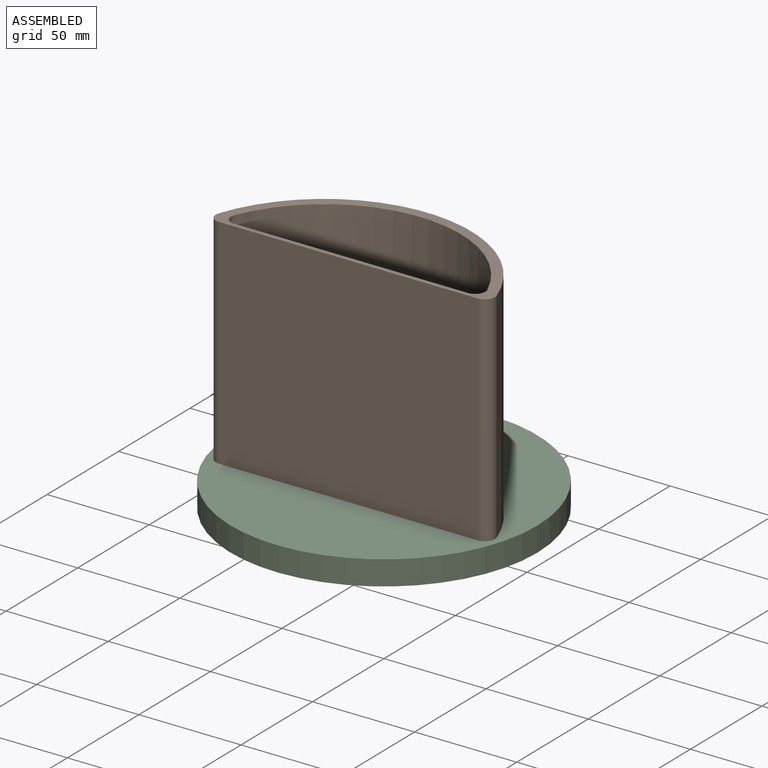
[diagram: assembled view]
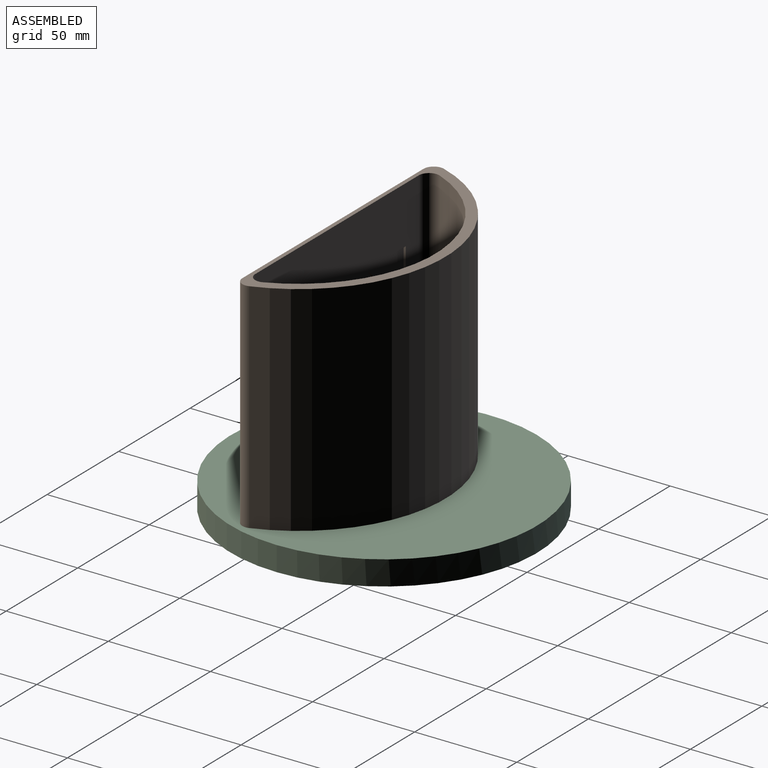
[diagram: assembled view, second angle]
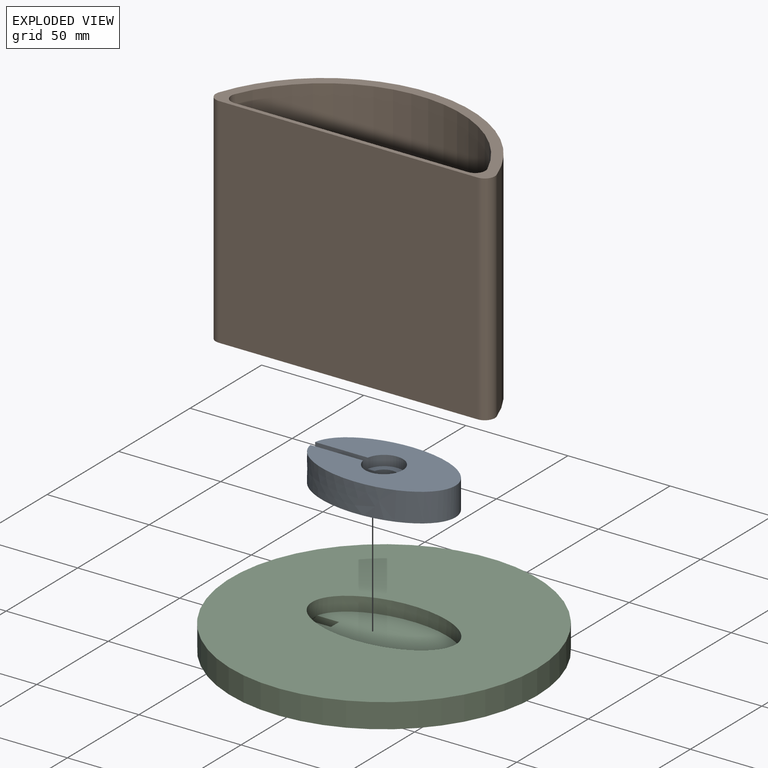
[diagram: exploded view]
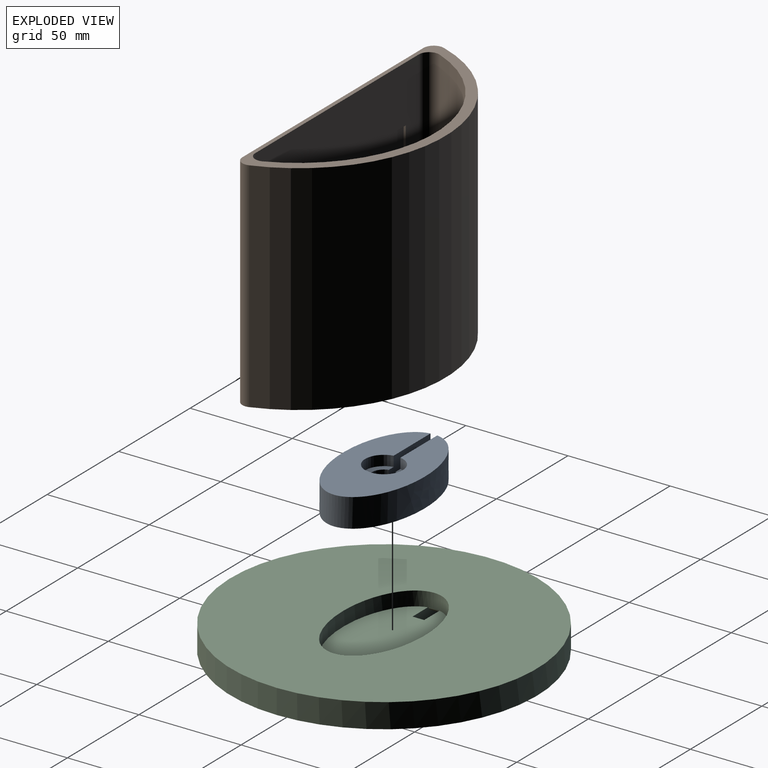
[diagram: exploded view, second angle]
ASSEMBLY  parts=3 mates=2
PART A: 16 faces, bbox 69.9x40x14 mm
  f0: extruded ~69.88x39.97mm, area 2409.3mm2, adj f1,f4,f6,f7,f8,f9,f14,f15
  f1: plane 69.88x40mm, normal (0,0,1), area 1845.3mm2, adj f0,f2,f14,f15
  f2: cylinder r=9.25mm len=18.5mm, axis (0,0,1), area 274mm2, adj f1,f3,f14,f15
  f3: plane 18.5x18.35mm, normal (0,0,1), area 144.9mm2, adj f2,f5,f14,f15
  f4: plane 33.55x4.2mm, normal (0,0,-1), area 93.9mm2, adj f0,f5,f7,f10,f13,f15
  f5: cylinder r=6mm len=12mm, axis (0,0,-1), area 264.3mm2, adj f3,f4,f6,f9,f10,f11,f14,f15
  f6: plane 69.64x40mm, normal (0,0,-1), area 1802.5mm2, adj f0,f5,f7,f8,f10,f11,f12,f13
  f7: plane 9.64x3.5mm, normal (0,1,0), area 33.7mm2, adj f0,f4,f6,f13
  f8: plane 9.64x3.5mm, normal (0,-1,0), area 33.7mm2, adj f0,f6,f9,f12
  f9: plane 33.55x4.2mm, normal (0,0,-1), area 93.9mm2, adj f0,f5,f8,f11,f12,f14
  f10: plane 20.67x3.5mm, normal (0,1,0), area 72.3mm2, adj f4,f5,f6,f13
  f11: plane 20.67x3.5mm, normal (0,-1,0), area 72.3mm2, adj f5,f6,f9,f12
  f12: plane 3.5x3mm, normal (0.71,-0.71,0), area 14.8mm2, adj f6,f8,f9,f11
  f13: plane 3.5x3mm, normal (0.71,0.71,0), area 14.8mm2, adj f4,f6,f7,f10
  f14: plane 29.11x10.5mm, normal (0,-1,0), area 289mm2, adj f0,f1,f2,f3,f5,f9
  f15: plane 29.11x10.5mm, normal (0,1,0), area 289mm2, adj f0,f1,f2,f3,f4,f5
PART B: 59 faces, bbox 136.7x55.1x107 mm
  f0: plane 114.46x100mm, normal (0,1,0), area 10006mm2, adj f1,f8,f10,f11,f17,f18,f19,f20
  f1: plane 124.46x48.15mm, normal (0,0,1), area 2309.9mm2, adj f0,f6,f8,f9,f10
  f2: plane 126.67x107mm, normal (0,-1,0), area 13554mm2, adj f3,f5,f7,f11
  f3: cylinder r=5mm len=107mm, axis (0,0,1), area 1018.1mm2, adj f2,f4,f7,f11
  f4: cylinder r=72mm len=136.13mm, axis (0,0,1), area 19083.8mm2, adj f3,f5,f7,f11
  f5: cylinder r=5mm len=107mm, axis (0,0,1), area 1018.1mm2, adj f2,f4,f7,f11
  f6: extruded ~70.3x40.3mm, area 1238.6mm2, adj f1,f7
  f7: plane 136.67x55.15mm, normal (0,0,-1), area 3492.5mm2, adj f2,f3,f4,f5,f6
  f8: cylinder r=5mm len=100mm, axis (0,0,-1), area 982.8mm2, adj f0,f1,f9,f11
  f9: cylinder r=67mm len=123.69mm, axis (0,0,-1), area 15757mm2, adj f1,f8,f10,f11
  f10: cylinder r=5mm len=100mm, axis (0,0,-1), area 982.8mm2, adj f0,f1,f9,f11
  f11: plane 136.67x55.15mm, normal (0,0,1), area 1182.6mm2, adj f0,f2,f3,f4,f5,f8,f9,f10
  f12: extruded ~7x1.76mm, area 7.3mm2, adj f13,f25,f26,f58
  f13: extruded ~7x1.78mm, area 7.3mm2, adj f12,f14,f26,f58
  f14: extruded ~5.29x2.36mm, area 6mm2, adj f13,f15,f26,f58
  f15: extruded ~9.36x6.99mm, area 13.3mm2, adj f14,f16,f26,f58
  f16: extruded ~9.35x7.03mm, area 13.3mm2, adj f15,f25,f26,f58
  f17: extruded ~10.58x3.41mm, area 11.4mm2, adj f0,f18,f24,f26
  f18: extruded ~10.57x3.38mm, area 11.4mm2, adj f0,f17,f19,f26
  f19: extruded ~9.77x3.68mm, area 10.8mm2, adj f0,f18,f20,f26
  f20: extruded ~9.81x3.65mm, area 10.8mm2, adj f0,f19,f21,f26
  f21: extruded ~10.57x3.42mm, area 11.4mm2, adj f0,f20,f22,f26
  f22: extruded ~10.62x3.41mm, area 11.4mm2, adj f0,f21,f23,f26
  f23: extruded ~9.78x3.7mm, area 10.8mm2, adj f0,f22,f24,f26
  f24: extruded ~9.78x3.7mm, area 10.8mm2, adj f0,f17,f23,f26
  f25: extruded ~5.27x2.35mm, area 6mm2, adj f12,f16,f26,f58
  f26: plane 28.53x26.38mm, normal (0,1,0), area 402mm2, adj f12,f13,f14,f15,f16,f17,f18,f19
  f27: plane 15.96x1mm, normal (0,0,1), area 16mm2, adj f0,f28,f38,f39
  f28: plane 4.85x1mm, normal (-1,0,0), area 4.9mm2, adj f0,f27,f29,f39
  f29: plane 10.08x1mm, normal (0,0,-1), area 10.1mm2, adj f0,f28,f30,f39
  f30: plane 7.14x1mm, normal (-1,0,0), area 7.1mm2, adj f0,f29,f31,f39
  f31: plane 9.38x1mm, normal (0,0,1), area 9.4mm2, adj f0,f30,f32,f39
  f32: plane 4.82x1mm, normal (-1,0,0), area 4.8mm2, adj f0,f31,f33,f39
  f33: plane 9.38x1mm, normal (0,0,-1), area 9.4mm2, adj f0,f32,f34,f39
  f34: plane 6.08x1mm, normal (-1,0,0), area 6.1mm2, adj f0,f33,f35,f39
  f35: plane 10.08x1mm, normal (0,0,1), area 10.1mm2, adj f0,f34,f36,f39
  f36: plane 4.82x1mm, normal (-1,0,0), area 4.8mm2, adj f0,f35,f37,f39
  f37: plane 15.96x1mm, normal (0,0,-1), area 16mm2, adj f0,f36,f38,f39
  f38: plane 27.71x1mm, normal (1,0,0), area 27.7mm2, adj f0,f27,f37,f39
  f39: plane 27.71x15.96mm, normal (0,1,0), area 305.4mm2, adj f27,f28,f29,f30,f31,f32,f33,f34
  f40: plane 5.93x1mm, normal (0,0,-1), area 5.9mm2, adj f0,f41,f49,f50
  f41: plane 16.49x5.25mm, normal (0.95,0,-0.3), area 17.3mm2, adj f0,f40,f42,f50
  f42: extruded ~6.1x1.43mm, area 6.3mm2, adj f0,f41,f43,f50
  f43: extruded ~2.7x1mm, area 2.8mm2, adj f0,f42,f44,f50
  f44: extruded ~3.4x1mm, area 3.5mm2, adj f0,f43,f45,f50
  f45: plane 16.49x5.22mm, normal (-0.95,0,-0.3), area 17.3mm2, adj f0,f44,f46,f50
  f46: plane 5.93x1mm, normal (0,0,-1), area 5.9mm2, adj f0,f45,f47,f50
  f47: plane 27.71x9.4mm, normal (0.95,0,0.32), area 29.3mm2, adj f0,f46,f48,f50
  f48: plane 6.4x1mm, normal (0,0,1), area 6.4mm2, adj f0,f47,f49,f50
  f49: plane 27.71x9.42mm, normal (-0.95,0,0.32), area 29.3mm2, adj f0,f40,f48,f50
  f50: plane 27.71x25.22mm, normal (0,1,0), area 296mm2, adj f40,f41,f42,f43,f44,f45,f46,f47
  f51: plane 27.71x1mm, normal (1,0,0), area 27.7mm2, adj f0,f52,f56,f57
  f52: plane 17.11x1mm, normal (0,0,1), area 17.1mm2, adj f0,f51,f53,f57
  f53: plane 4.85x1mm, normal (-1,0,0), area 4.9mm2, adj f0,f52,f54,f57
  f54: plane 11.24x1mm, normal (0,0,-1), area 11.2mm2, adj f0,f53,f55,f57
  f55: plane 22.86x1mm, normal (-1,0,0), area 22.9mm2, adj f0,f54,f56,f57
  f56: plane 5.88x1mm, normal (0,0,-1), area 5.9mm2, adj f0,f51,f55,f57
  f57: plane 27.71x17.11mm, normal (0,1,0), area 217.3mm2, adj f51,f52,f53,f54,f55,f56
  f58: plane 18.7x14.06mm, normal (0,1,0), area 218.9mm2, adj f12,f13,f14,f15,f16,f25
PART C: 14 faces, bbox 150x150x12 mm
  f0: plane 69.95x40.3mm, normal (0,0,1), area 2162.2mm2, adj f3,f6,f7,f12
  f1: cylinder r=75mm len=150mm, axis (0,0,-1), area 5634.9mm2, adj f2,f4,f5,f6,f7
  f2: plane 150x149.95mm, normal (0,0,-1), area 17386.6mm2, adj f1,f6,f7,f8
  f3: extruded ~70.3x40.3mm, area 1238.6mm2, adj f0,f4,f9,f11
  f4: plane 150x150mm, normal (0,0,1), area 15446.4mm2, adj f1,f3
  f5: plane 38.85x5.7mm, normal (0,0,-1), area 221.3mm2, adj f1,f6,f7,f13
  f6: plane 50.95x5mm, normal (0,1,0), area 191mm2, adj f0,f1,f2,f5,f8,f9,f10,f12
  f7: plane 50.95x5mm, normal (0,-1,0), area 191mm2, adj f0,f1,f2,f5,f8,f10,f11,f12
  f8: plane 5.7x4mm, normal (-1,0,0), area 22.8mm2, adj f2,f6,f7,f12
  f9: plane 2.85x0.35mm, normal (0,0,-1), area 0.3mm2, adj f3,f6,f10
  f10: plane 5.7x0.5mm, normal (1,0,0), area 2.9mm2, adj f6,f7,f9,f11,f13
  f11: plane 2.85x0.35mm, normal (0,0,-1), area 0.3mm2, adj f3,f7,f10
  f12: plane 5.7x1mm, normal (-0.71,0,0.71), area 8.1mm2, adj f0,f6,f7,f8
  f13: plane 5.7x1mm, normal (0.71,0,-0.71), area 8.1mm2, adj f5,f6,f7,f10
PLACE A t=(-200,0,5)mm
PLACE B t=(242.08,0,19)mm
PLACE C at identity
MATE fastened B.f1 <-> A.f5  axis (0,0,1) through (-200,0,19)mm
MATE fastened A.f5 <-> C.f1  axis (0,0,-1) through (-200,0,5)mm
